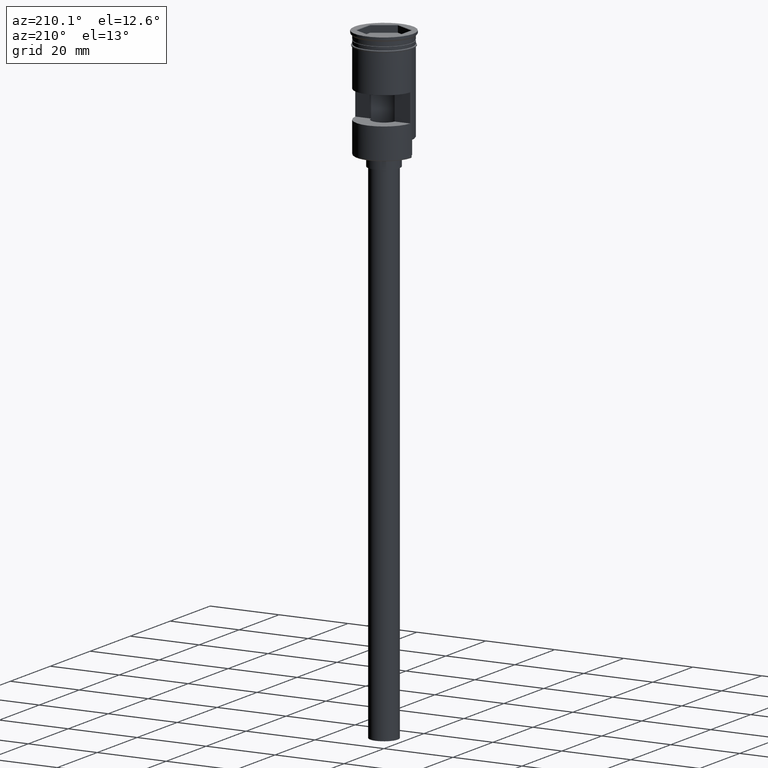
[diagram: clean part render]
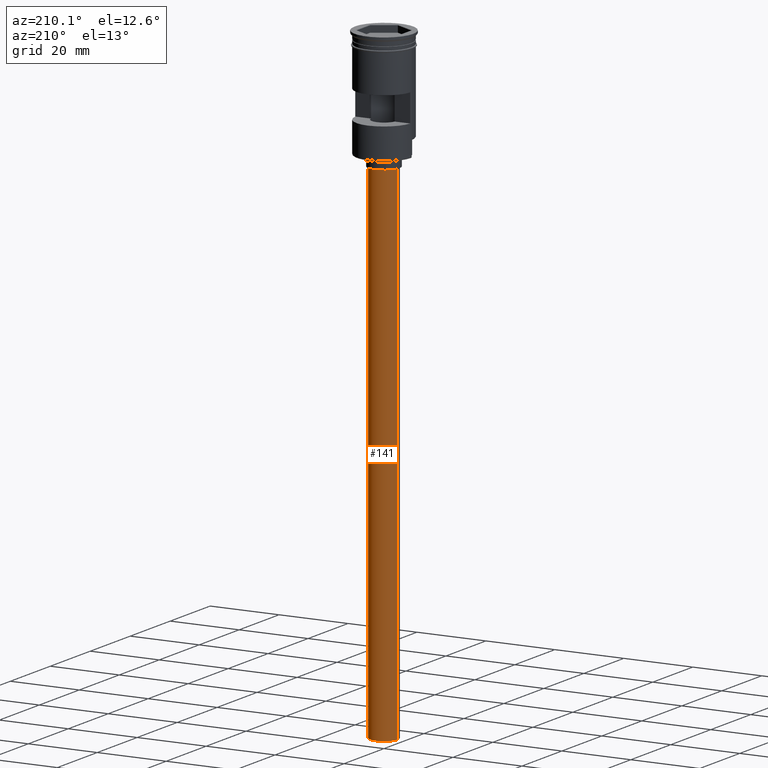
[diagram: same view with one face highlighted and labeled with its STEP entity id]
A machine part, auxiliary view. The second image highlights one B-rep face of the part: STEP entity #141.
In plain terms, the highlighted cylindrical surface (edge-blend (fillet) strip) has radius 4 mm, axis along (-0, -0, 1).
Its self-contained STEP definition (entity closure, byte-faithful):
#58 = LINE ( 'NONE', #209, #133 ) ;
#66 = DIRECTION ( 'NONE',  ( 0.000000000000000000, 0.000000000000000000, -1.000000000000000000 ) ) ;
#133 = VECTOR ( 'NONE', #1326, 1000.000000000000000 ) ;
#141 = ADVANCED_FACE ( 'NONE', ( #1300 ), #1174, .T. ) ;
#143 = CARTESIAN_POINT ( 'NONE',  ( 0.000000000000000000, 0.000000000000000000, -35.00000000000000000 ) ) ;
#156 = CIRCLE ( 'NONE', #1112, 4.000000000000000000 ) ;
#158 = CARTESIAN_POINT ( 'NONE',  ( 4.000000000000000000, 0.000000000000000000, -182.0000000000000000 ) ) ;
#196 = EDGE_LOOP ( 'NONE', ( #1402, #1069, #469, #1067 ) ) ;
#205 = AXIS2_PLACEMENT_3D ( 'NONE', #942, #542, #1315 ) ;
#209 = CARTESIAN_POINT ( 'NONE',  ( -4.000000000000000000, 4.898587196589412829E-16, -182.0000000000000000 ) ) ;
#211 = DIRECTION ( 'NONE',  ( -1.000000000000000000, 0.000000000000000000, 0.000000000000000000 ) ) ;
#319 = EDGE_CURVE ( 'NONE', #1051, #380, #656, .T. ) ;
#357 = CARTESIAN_POINT ( 'NONE',  ( -4.000000000000000000, 4.898587196589412829E-16, -182.0000000000000000 ) ) ;
#380 = VERTEX_POINT ( 'NONE', #912 ) ;
#395 = DIRECTION ( 'NONE',  ( 0.000000000000000000, 0.000000000000000000, -1.000000000000000000 ) ) ;
#401 = DIRECTION ( 'NONE',  ( -1.000000000000000000, 0.000000000000000000, 0.000000000000000000 ) ) ;
#456 = CARTESIAN_POINT ( 'NONE',  ( 4.000000000000000000, 0.000000000000000000, -182.0000000000000000 ) ) ;
#469 = ORIENTED_EDGE ( 'NONE', *, *, #1322, .T. ) ;
#511 = CARTESIAN_POINT ( 'NONE',  ( -4.000000000000000000, 4.898587196589412829E-16, -35.00000000000000000 ) ) ;
#542 = DIRECTION ( 'NONE',  ( -0.000000000000000000, -0.000000000000000000, 1.000000000000000000 ) ) ;
#619 = AXIS2_PLACEMENT_3D ( 'NONE', #1320, #66, #211 ) ;
#656 = LINE ( 'NONE', #158, #1244 ) ;
#707 = VERTEX_POINT ( 'NONE', #357 ) ;
#912 = CARTESIAN_POINT ( 'NONE',  ( 4.000000000000000000, 0.000000000000000000, -35.00000000000000000 ) ) ;
#942 = CARTESIAN_POINT ( 'NONE',  ( 0.000000000000000000, 0.000000000000000000, -182.0000000000000000 ) ) ;
#1023 = EDGE_CURVE ( 'NONE', #707, #1051, #1321, .T. ) ;
#1051 = VERTEX_POINT ( 'NONE', #456 ) ;
#1067 = ORIENTED_EDGE ( 'NONE', *, *, #319, .F. ) ;
#1069 = ORIENTED_EDGE ( 'NONE', *, *, #1361, .T. ) ;
#1112 = AXIS2_PLACEMENT_3D ( 'NONE', #143, #395, #401 ) ;
#1174 = CYLINDRICAL_SURFACE ( 'NONE', #205, 4.000000000000000000 ) ;
#1244 = VECTOR ( 'NONE', #1510, 1000.000000000000000 ) ;
#1300 = FACE_OUTER_BOUND ( 'NONE', #196, .T. ) ;
#1315 = DIRECTION ( 'NONE',  ( 1.000000000000000000, 0.000000000000000000, 0.000000000000000000 ) ) ;
#1320 = CARTESIAN_POINT ( 'NONE',  ( 0.000000000000000000, 0.000000000000000000, -182.0000000000000000 ) ) ;
#1321 = CIRCLE ( 'NONE', #619, 4.000000000000000000 ) ;
#1322 = EDGE_CURVE ( 'NONE', #1323, #380, #156, .T. ) ;
#1323 = VERTEX_POINT ( 'NONE', #511 ) ;
#1326 = DIRECTION ( 'NONE',  ( -0.000000000000000000, -0.000000000000000000, 1.000000000000000000 ) ) ;
#1361 = EDGE_CURVE ( 'NONE', #707, #1323, #58, .T. ) ;
#1402 = ORIENTED_EDGE ( 'NONE', *, *, #1023, .F. ) ;
#1510 = DIRECTION ( 'NONE',  ( -0.000000000000000000, -0.000000000000000000, 1.000000000000000000 ) ) ;